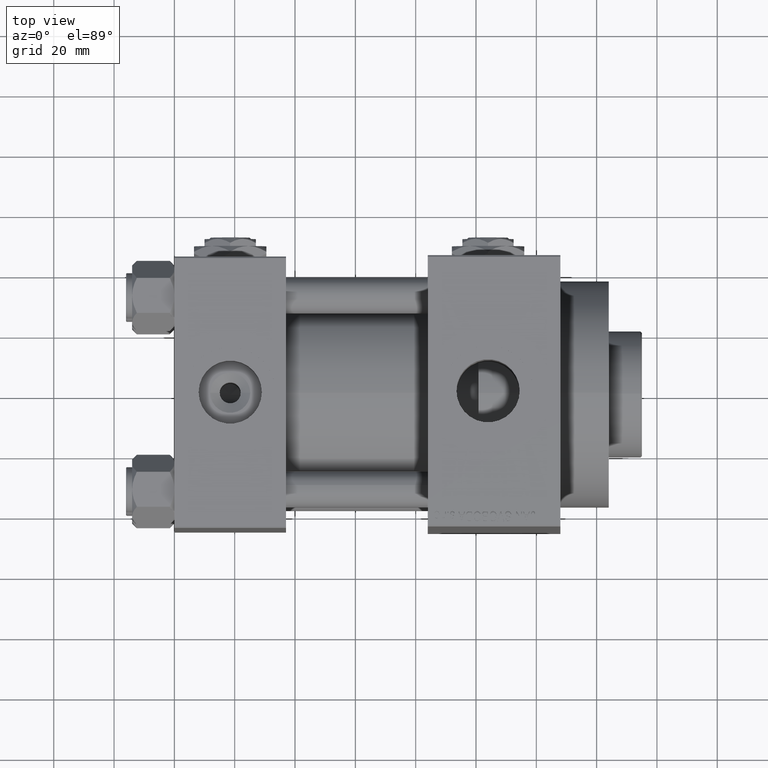
[diagram: clean part render]
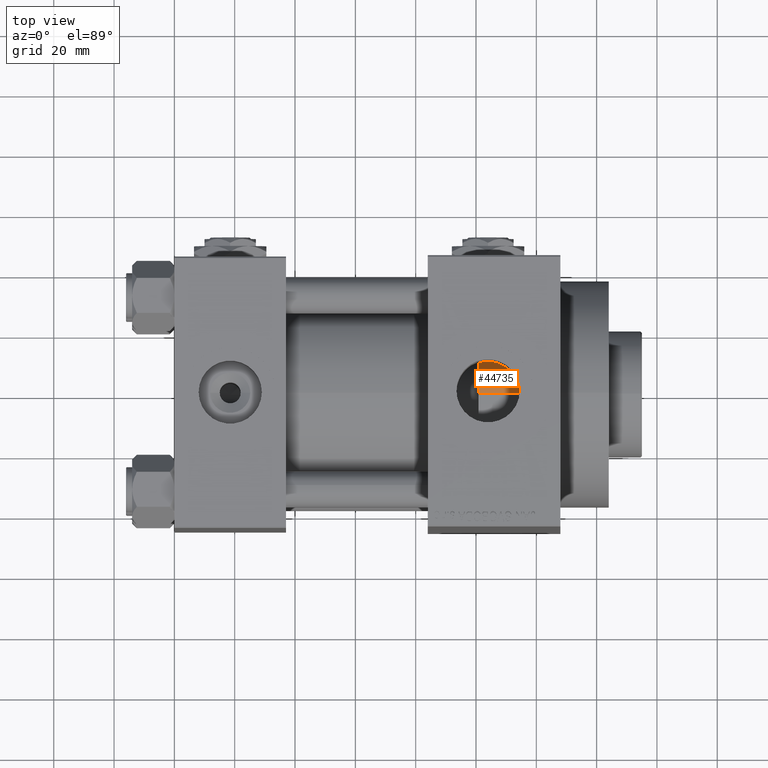
[diagram: same view with one face highlighted and labeled with its STEP entity id]
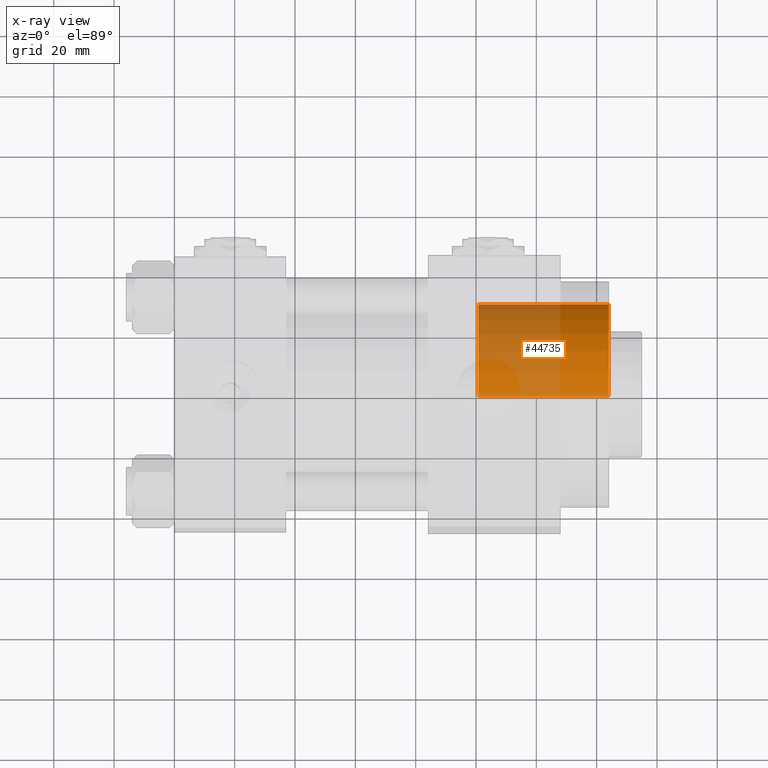
[diagram: x-ray of the same camera — body ghosted, the highlighted face saturated]
A machine part, top view. The second image highlights one B-rep face of the part: STEP entity #44735.
The next image is the same camera in x-ray: the body ghosted, the highlighted face saturated — about 54% of this face is hidden behind the body in this view.
In plain terms, the highlighted cylindrical surface (partial cylindrical patch) has radius 30 mm, axis along (-1, 0, 0).
Its self-contained STEP definition (entity closure, byte-faithful):
#1513 = CARTESIAN_POINT ( 'NONE',  ( -30.00000000000000000, 0.000000000000000000, 43.25999999999999801 ) ) ;
#1593 = LINE ( 'NONE', #28765, #11258 ) ;
#3804 = VERTEX_POINT ( 'NONE', #41807 ) ;
#3852 = CARTESIAN_POINT ( 'NONE',  ( 30.00000000000000000, 3.673940397442059178E-15, 0.000000000000000000 ) ) ;
#4459 = FACE_OUTER_BOUND ( 'NONE', #38304, .T. ) ;
#5041 = DIRECTION ( 'NONE',  ( 0.000000000000000000, 0.000000000000000000, 1.000000000000000000 ) ) ;
#5665 = CIRCLE ( 'NONE', #8060, 30.00000000000000000 ) ;
#7221 = CARTESIAN_POINT ( 'NONE',  ( 30.00000000000000000, 3.673940397442059178E-15, 43.25999999999999801 ) ) ;
#8060 = AXIS2_PLACEMENT_3D ( 'NONE', #17602, #13603, #21348 ) ;
#9737 = EDGE_CURVE ( 'NONE', #3804, #25599, #34948, .T. ) ;
#11258 = VECTOR ( 'NONE', #36730, 1000.000000000000000 ) ;
#13332 = AXIS2_PLACEMENT_3D ( 'NONE', #47327, #25156, #36353 ) ;
#13404 = VECTOR ( 'NONE', #47618, 1000.000000000000000 ) ;
#13603 = DIRECTION ( 'NONE',  ( 0.000000000000000000, 0.000000000000000000, 1.000000000000000000 ) ) ;
#15237 = ORIENTED_EDGE ( 'NONE', *, *, #18936, .F. ) ;
#17602 = CARTESIAN_POINT ( 'NONE',  ( 0.000000000000000000, 0.000000000000000000, 43.25999999999999801 ) ) ;
#18643 = EDGE_CURVE ( 'NONE', #45987, #40692, #5665, .T. ) ;
#18936 = EDGE_CURVE ( 'NONE', #40692, #25599, #1593, .T. ) ;
#19056 = AXIS2_PLACEMENT_3D ( 'NONE', #39943, #5041, #42960 ) ;
#19703 = CYLINDRICAL_SURFACE ( 'NONE', #13332, 30.00000000000000000 ) ;
#20134 = ORIENTED_EDGE ( 'NONE', *, *, #46046, .T. ) ;
#21348 = DIRECTION ( 'NONE',  ( 1.000000000000000000, 0.000000000000000000, 0.000000000000000000 ) ) ;
#25156 = DIRECTION ( 'NONE',  ( -0.000000000000000000, -0.000000000000000000, -1.000000000000000000 ) ) ;
#25599 = VERTEX_POINT ( 'NONE', #3852 ) ;
#28765 = CARTESIAN_POINT ( 'NONE',  ( 30.00000000000000000, 3.673940397442059178E-15, 43.25999999999999801 ) ) ;
#34948 = CIRCLE ( 'NONE', #19056, 30.00000000000000000 ) ;
#35430 = LINE ( 'NONE', #1513, #13404 ) ;
#36353 = DIRECTION ( 'NONE',  ( -1.000000000000000000, 0.000000000000000000, 0.000000000000000000 ) ) ;
#36730 = DIRECTION ( 'NONE',  ( -0.000000000000000000, -0.000000000000000000, -1.000000000000000000 ) ) ;
#38304 = EDGE_LOOP ( 'NONE', ( #15237, #45114, #20134, #39491 ) ) ;
#39491 = ORIENTED_EDGE ( 'NONE', *, *, #9737, .T. ) ;
#39943 = CARTESIAN_POINT ( 'NONE',  ( 0.000000000000000000, 0.000000000000000000, 0.000000000000000000 ) ) ;
#40692 = VERTEX_POINT ( 'NONE', #7221 ) ;
#41807 = CARTESIAN_POINT ( 'NONE',  ( -30.00000000000000000, 0.000000000000000000, 0.000000000000000000 ) ) ;
#42960 = DIRECTION ( 'NONE',  ( 1.000000000000000000, 0.000000000000000000, 0.000000000000000000 ) ) ;
#44735 = ADVANCED_FACE ( 'NONE', ( #4459 ), #19703, .T. ) ;
#45114 = ORIENTED_EDGE ( 'NONE', *, *, #18643, .F. ) ;
#45987 = VERTEX_POINT ( 'NONE', #47129 ) ;
#46046 = EDGE_CURVE ( 'NONE', #45987, #3804, #35430, .T. ) ;
#47129 = CARTESIAN_POINT ( 'NONE',  ( -30.00000000000000000, 0.000000000000000000, 43.25999999999999801 ) ) ;
#47327 = CARTESIAN_POINT ( 'NONE',  ( 0.000000000000000000, 0.000000000000000000, 43.25999999999999801 ) ) ;
#47618 = DIRECTION ( 'NONE',  ( -0.000000000000000000, -0.000000000000000000, -1.000000000000000000 ) ) ;